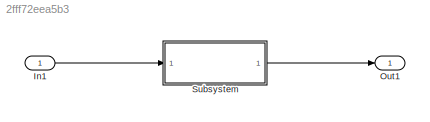
MODEL slx_2fff72eea5b3
KIND model
CONFIG InitFcn = a = 1;\nb = 0.3;
BLOCK [Inport] In1
  IconDisplay = Port number
BLOCK [Outport] Out1
  IconDisplay = Port number
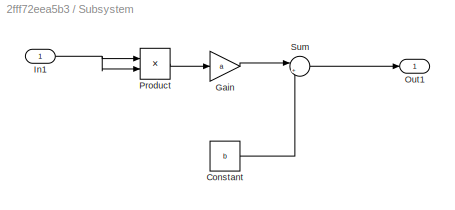
BLOCK [SubSystem] Subsystem
  FunctionWithSeparateData = off
  MaskHideContents = off
  MinAlgLoopOccurrences = off
  Opaque = off
  Ports = [1, 1]
  PropExecContextOutsideSubsystem = off
  RTWSystemCode = Auto
  RequestExecContextInheritance = off
BLOCK [Constant] Subsystem/Constant
  Value = b
BLOCK [Gain] Subsystem/Gain
  Gain = a
  OutDataTypeStr = Inherit: Inherit via internal rule
  ParamDataTypeStr = Inherit: Inherit via internal rule
  SaturateOnIntegerOverflow = off
BLOCK [Inport] Subsystem/In1
  IconDisplay = Port number
BLOCK [Outport] Subsystem/Out1
  IconDisplay = Port number
BLOCK [Product] Subsystem/Product
  InputSameDT = off
  OutDataTypeStr = Inherit: Inherit via internal rule
  Ports = [2, 1]
  RndMeth = Floor
  SaturateOnIntegerOverflow = off
BLOCK [Sum] Subsystem/Sum
  IconShape = round
  InputSameDT = off
  Inputs = |++
  OutDataTypeStr = Inherit: Inherit via internal rule
  Ports = [2, 1]
  SaturateOnIntegerOverflow = off
LINE In1:1 -> Subsystem:1
LINE Subsystem/Constant:1 -> Subsystem/Sum:2
LINE Subsystem/Gain:1 -> Subsystem/Sum:1
NET Subsystem/In1:1 -> Subsystem/Product:1, Subsystem/Product:2
LINE Subsystem/Product:1 -> Subsystem/Gain:1
LINE Subsystem/Sum:1 -> Subsystem/Out1:1
LINE Subsystem:1 -> Out1:1
note: NET lines group one-source signal fan-out (src -> all destinations, sorted); 1:1 wires keep LINE
